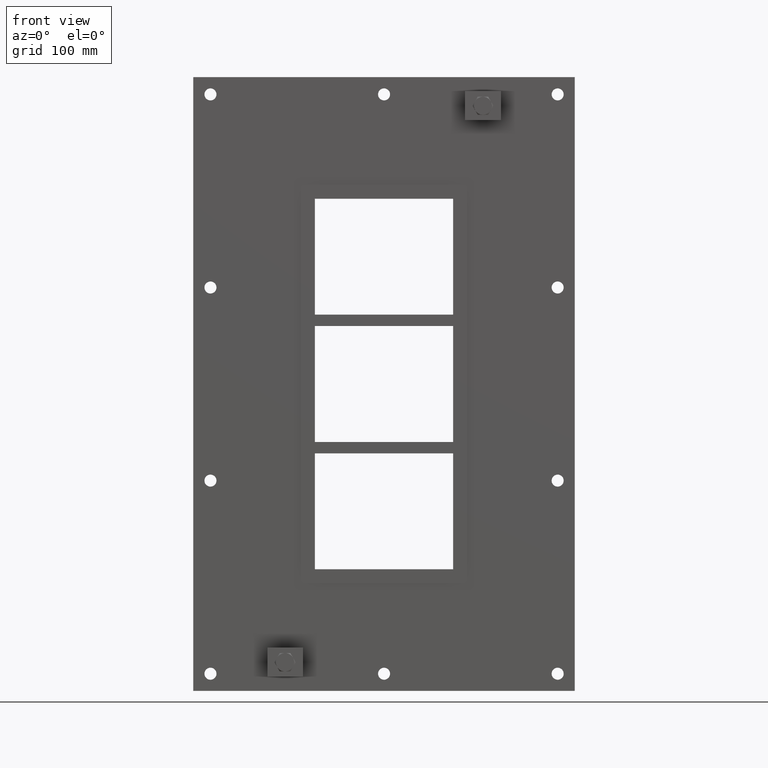
[diagram: clean part render]
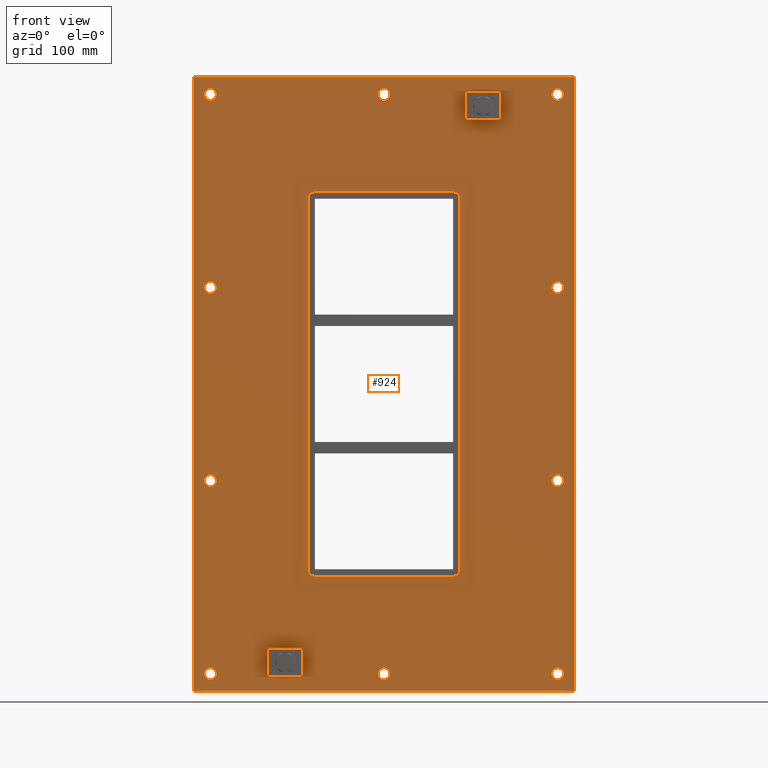
[diagram: same view with one face highlighted and labeled with its STEP entity id]
A machine part, front view. The second image highlights one B-rep face of the part: STEP entity #924.
In plain terms, the highlighted planar face has unit normal (0, 1, 0).
Its self-contained STEP definition (entity closure, byte-faithful):
#84=CARTESIAN_POINT('',(-146.00000000000017,0.0,-252.49999999999983));
#85=VERTEX_POINT('',#84);
#86=CARTESIAN_POINT('',(-151.25000000000017,0.0,-252.49999999999983));
#87=DIRECTION('',(0.0,1.0,0.0));
#88=DIRECTION('',(1.0,0.0,0.0));
#89=AXIS2_PLACEMENT_3D('',#86,#87,#88);
#90=CIRCLE('',#89,5.25);
#91=EDGE_CURVE('',#85,#85,#90,.T.);
#112=CARTESIAN_POINT('',(156.59999999999991,0.0,-84.199999999999847));
#113=VERTEX_POINT('',#112);
#114=CARTESIAN_POINT('',(151.34999999999988,0.0,-84.199999999999847));
#115=DIRECTION('',(0.0,1.0,0.0));
#116=DIRECTION('',(1.0,0.0,0.0));
#117=AXIS2_PLACEMENT_3D('',#114,#115,#116);
#118=CIRCLE('',#117,5.25);
#119=EDGE_CURVE('',#113,#113,#118,.T.);
#140=CARTESIAN_POINT('',(-146.00000000000017,0.0,-84.199999999999847));
#141=VERTEX_POINT('',#140);
#142=CARTESIAN_POINT('',(-151.25000000000017,0.0,-84.199999999999847));
#143=DIRECTION('',(0.0,1.0,0.0));
#144=DIRECTION('',(1.0,0.0,0.0));
#145=AXIS2_PLACEMENT_3D('',#142,#143,#144);
#146=CIRCLE('',#145,5.25);
#147=EDGE_CURVE('',#141,#141,#146,.T.);
#168=CARTESIAN_POINT('',(156.59999999999991,0.0,84.100000000000136));
#169=VERTEX_POINT('',#168);
#170=CARTESIAN_POINT('',(151.34999999999988,0.0,84.100000000000136));
#171=DIRECTION('',(0.0,1.0,0.0));
#172=DIRECTION('',(1.0,0.0,0.0));
#173=AXIS2_PLACEMENT_3D('',#170,#171,#172);
#174=CIRCLE('',#173,5.25);
#175=EDGE_CURVE('',#169,#169,#174,.T.);
#196=CARTESIAN_POINT('',(-146.00000000000017,0.0,84.100000000000136));
#197=VERTEX_POINT('',#196);
#198=CARTESIAN_POINT('',(-151.25000000000017,0.0,84.100000000000136));
#199=DIRECTION('',(0.0,1.0,0.0));
#200=DIRECTION('',(1.0,0.0,0.0));
#201=AXIS2_PLACEMENT_3D('',#198,#199,#200);
#202=CIRCLE('',#201,5.25);
#203=EDGE_CURVE('',#197,#197,#202,.T.);
#224=CARTESIAN_POINT('',(5.299999999999869,0.0,252.40000000000012));
#225=VERTEX_POINT('',#224);
#226=CARTESIAN_POINT('',(0.049999999999866,0.0,252.40000000000012));
#227=DIRECTION('',(0.0,1.0,0.0));
#228=DIRECTION('',(1.0,0.0,0.0));
#229=AXIS2_PLACEMENT_3D('',#226,#227,#228);
#230=CIRCLE('',#229,5.25);
#231=EDGE_CURVE('',#225,#225,#230,.T.);
#252=CARTESIAN_POINT('',(5.299999999999869,0.0,-252.5));
#253=VERTEX_POINT('',#252);
#254=CARTESIAN_POINT('',(0.049999999999866,0.0,-252.5));
#255=DIRECTION('',(0.0,1.0,0.0));
#256=DIRECTION('',(1.0,0.0,0.0));
#257=AXIS2_PLACEMENT_3D('',#254,#255,#256);
#258=CIRCLE('',#257,5.25);
#259=EDGE_CURVE('',#253,#253,#258,.T.);
#280=CARTESIAN_POINT('',(156.59999999999991,0.0,-252.5));
#281=VERTEX_POINT('',#280);
#282=CARTESIAN_POINT('',(151.34999999999988,0.0,-252.5));
#283=DIRECTION('',(0.0,1.0,0.0));
#284=DIRECTION('',(1.0,0.0,0.0));
#285=AXIS2_PLACEMENT_3D('',#282,#283,#284);
#286=CIRCLE('',#285,5.25);
#287=EDGE_CURVE('',#281,#281,#286,.T.);
#308=CARTESIAN_POINT('',(-146.00000000000017,0.0,252.40000000000012));
#309=VERTEX_POINT('',#308);
#310=CARTESIAN_POINT('',(-151.25000000000017,0.0,252.40000000000012));
#311=DIRECTION('',(0.0,1.0,0.0));
#312=DIRECTION('',(1.0,0.0,0.0));
#313=AXIS2_PLACEMENT_3D('',#310,#311,#312);
#314=CIRCLE('',#313,5.25);
#315=EDGE_CURVE('',#309,#309,#314,.T.);
#336=CARTESIAN_POINT('',(156.59999999999991,0.0,252.40000000000012));
#337=VERTEX_POINT('',#336);
#338=CARTESIAN_POINT('',(151.34999999999988,0.0,252.40000000000012));
#339=DIRECTION('',(0.0,1.0,0.0));
#340=DIRECTION('',(1.0,0.0,0.0));
#341=AXIS2_PLACEMENT_3D('',#338,#339,#340);
#342=CIRCLE('',#341,5.25);
#343=EDGE_CURVE('',#337,#337,#342,.T.);
#785=CARTESIAN_POINT('',(-1.965767E-014,0.0,0.0));
#786=DIRECTION('',(0.0,1.0,0.0));
#787=DIRECTION('',(0.0,0.0,1.0));
#788=AXIS2_PLACEMENT_3D('',#785,#786,#787);
#789=PLANE('',#788);
#790=CARTESIAN_POINT('',(-166.25000000000003,0.0,267.5));
#791=VERTEX_POINT('',#790);
#792=CARTESIAN_POINT('',(166.25,0.0,267.5));
#793=VERTEX_POINT('',#792);
#794=CARTESIAN_POINT('',(-166.25000000000003,0.0,267.5));
#795=DIRECTION('',(1.0,0.0,0.0));
#796=VECTOR('',#795,332.5);
#797=LINE('',#794,#796);
#798=EDGE_CURVE('',#791,#793,#797,.T.);
#799=ORIENTED_EDGE('',*,*,#798,.F.);
#800=CARTESIAN_POINT('',(-166.25000000000003,0.0,-267.5));
#801=VERTEX_POINT('',#800);
#802=CARTESIAN_POINT('',(-166.25000000000003,0.0,-267.5));
#803=DIRECTION('',(0.0,0.0,1.0));
#804=VECTOR('',#803,535.0);
#805=LINE('',#802,#804);
#806=EDGE_CURVE('',#801,#791,#805,.T.);
#807=ORIENTED_EDGE('',*,*,#806,.F.);
#808=CARTESIAN_POINT('',(166.25,0.0,-267.5));
#809=VERTEX_POINT('',#808);
#810=CARTESIAN_POINT('',(166.25,0.0,-267.5));
#811=DIRECTION('',(-1.0,0.0,0.0));
#812=VECTOR('',#811,332.5);
#813=LINE('',#810,#812);
#814=EDGE_CURVE('',#809,#801,#813,.T.);
#815=ORIENTED_EDGE('',*,*,#814,.F.);
#816=CARTESIAN_POINT('',(166.25,0.0,267.5));
#817=DIRECTION('',(0.0,0.0,-1.0));
#818=VECTOR('',#817,535.0);
#819=LINE('',#816,#818);
#820=EDGE_CURVE('',#793,#809,#819,.T.);
#821=ORIENTED_EDGE('',*,*,#820,.F.);
#822=EDGE_LOOP('',(#799,#807,#815,#821));
#823=FACE_OUTER_BOUND('',#822,.T.);
#824=ORIENTED_EDGE('',*,*,#91,.T.);
#825=EDGE_LOOP('',(#824));
#826=FACE_BOUND('',#825,.T.);
#827=ORIENTED_EDGE('',*,*,#119,.T.);
#828=EDGE_LOOP('',(#827));
#829=FACE_BOUND('',#828,.T.);
#830=ORIENTED_EDGE('',*,*,#147,.T.);
#831=EDGE_LOOP('',(#830));
#832=FACE_BOUND('',#831,.T.);
#833=ORIENTED_EDGE('',*,*,#175,.T.);
#834=EDGE_LOOP('',(#833));
#835=FACE_BOUND('',#834,.T.);
#836=ORIENTED_EDGE('',*,*,#203,.T.);
#837=EDGE_LOOP('',(#836));
#838=FACE_BOUND('',#837,.T.);
#839=ORIENTED_EDGE('',*,*,#231,.T.);
#840=EDGE_LOOP('',(#839));
#841=FACE_BOUND('',#840,.T.);
#842=ORIENTED_EDGE('',*,*,#259,.T.);
#843=EDGE_LOOP('',(#842));
#844=FACE_BOUND('',#843,.T.);
#845=ORIENTED_EDGE('',*,*,#287,.T.);
#846=EDGE_LOOP('',(#845));
#847=FACE_BOUND('',#846,.T.);
#848=ORIENTED_EDGE('',*,*,#315,.T.);
#849=EDGE_LOOP('',(#848));
#850=FACE_BOUND('',#849,.T.);
#851=ORIENTED_EDGE('',*,*,#343,.T.);
#852=EDGE_LOOP('',(#851));
#853=FACE_BOUND('',#852,.T.);
#854=CARTESIAN_POINT('',(-60.25,0.0,167.5));
#855=VERTEX_POINT('',#854);
#856=CARTESIAN_POINT('',(-66.250000000000014,0.0,161.5));
#857=VERTEX_POINT('',#856);
#858=CARTESIAN_POINT('',(-60.25,0.0,161.5));
#859=DIRECTION('',(0.0,-1.0,0.0));
#860=DIRECTION('',(-0.707106781186548,0.0,0.707106781186548));
#861=AXIS2_PLACEMENT_3D('',#858,#859,#860);
#862=CIRCLE('',#861,6.000000000000002);
#863=EDGE_CURVE('',#855,#857,#862,.T.);
#864=ORIENTED_EDGE('',*,*,#863,.F.);
#865=CARTESIAN_POINT('',(60.249999999999986,0.0,167.5));
#866=VERTEX_POINT('',#865);
#867=CARTESIAN_POINT('',(60.249999999999986,0.0,167.5));
#868=DIRECTION('',(-1.0,0.0,0.0));
#869=VECTOR('',#868,120.49999999999999);
#870=LINE('',#867,#869);
#871=EDGE_CURVE('',#866,#855,#870,.T.);
#872=ORIENTED_EDGE('',*,*,#871,.F.);
#873=CARTESIAN_POINT('',(66.249999999999986,0.0,161.5));
#874=VERTEX_POINT('',#873);
#875=CARTESIAN_POINT('',(60.249999999999986,0.0,161.5));
#876=DIRECTION('',(0.0,-1.0,0.0));
#877=DIRECTION('',(0.707106781186548,0.0,0.707106781186548));
#878=AXIS2_PLACEMENT_3D('',#875,#876,#877);
#879=CIRCLE('',#878,6.000000000000002);
#880=EDGE_CURVE('',#874,#866,#879,.T.);
#881=ORIENTED_EDGE('',*,*,#880,.F.);
#882=CARTESIAN_POINT('',(66.249999999999986,0.0,-161.5));
#883=VERTEX_POINT('',#882);
#884=CARTESIAN_POINT('',(66.249999999999986,0.0,-161.5));
#885=DIRECTION('',(0.0,0.0,1.0));
#886=VECTOR('',#885,323.0);
#887=LINE('',#884,#886);
#888=EDGE_CURVE('',#883,#874,#887,.T.);
#889=ORIENTED_EDGE('',*,*,#888,.F.);
#890=CARTESIAN_POINT('',(60.249999999999986,0.0,-167.5));
#891=VERTEX_POINT('',#890);
#892=CARTESIAN_POINT('',(60.249999999999986,0.0,-161.5));
#893=DIRECTION('',(0.0,-1.0,0.0));
#894=DIRECTION('',(0.707106781186548,0.0,-0.707106781186548));
#895=AXIS2_PLACEMENT_3D('',#892,#893,#894);
#896=CIRCLE('',#895,6.000000000000002);
#897=EDGE_CURVE('',#891,#883,#896,.T.);
#898=ORIENTED_EDGE('',*,*,#897,.F.);
#899=CARTESIAN_POINT('',(-60.25,0.0,-167.5));
#900=VERTEX_POINT('',#899);
#901=CARTESIAN_POINT('',(-60.25,0.0,-167.5));
#902=DIRECTION('',(1.0,0.0,0.0));
#903=VECTOR('',#902,120.49999999999999);
#904=LINE('',#901,#903);
#905=EDGE_CURVE('',#900,#891,#904,.T.);
#906=ORIENTED_EDGE('',*,*,#905,.F.);
#907=CARTESIAN_POINT('',(-66.250000000000014,0.0,-161.5));
#908=VERTEX_POINT('',#907);
#909=CARTESIAN_POINT('',(-60.25,0.0,-161.5));
#910=DIRECTION('',(0.0,-1.0,0.0));
#911=DIRECTION('',(-0.707106781186548,0.0,-0.707106781186548));
#912=AXIS2_PLACEMENT_3D('',#909,#910,#911);
#913=CIRCLE('',#912,6.000000000000002);
#914=EDGE_CURVE('',#908,#900,#913,.T.);
#915=ORIENTED_EDGE('',*,*,#914,.F.);
#916=CARTESIAN_POINT('',(-66.250000000000014,0.0,161.5));
#917=DIRECTION('',(0.0,0.0,-1.0));
#918=VECTOR('',#917,323.0);
#919=LINE('',#916,#918);
#920=EDGE_CURVE('',#857,#908,#919,.T.);
#921=ORIENTED_EDGE('',*,*,#920,.F.);
#922=EDGE_LOOP('',(#864,#872,#881,#889,#898,#906,#915,#921));
#923=FACE_BOUND('',#922,.T.);
#924=ADVANCED_FACE('',(#823,#826,#829,#832,#835,#838,#841,#844,#847,#850,#853,#923),#789,.F.);